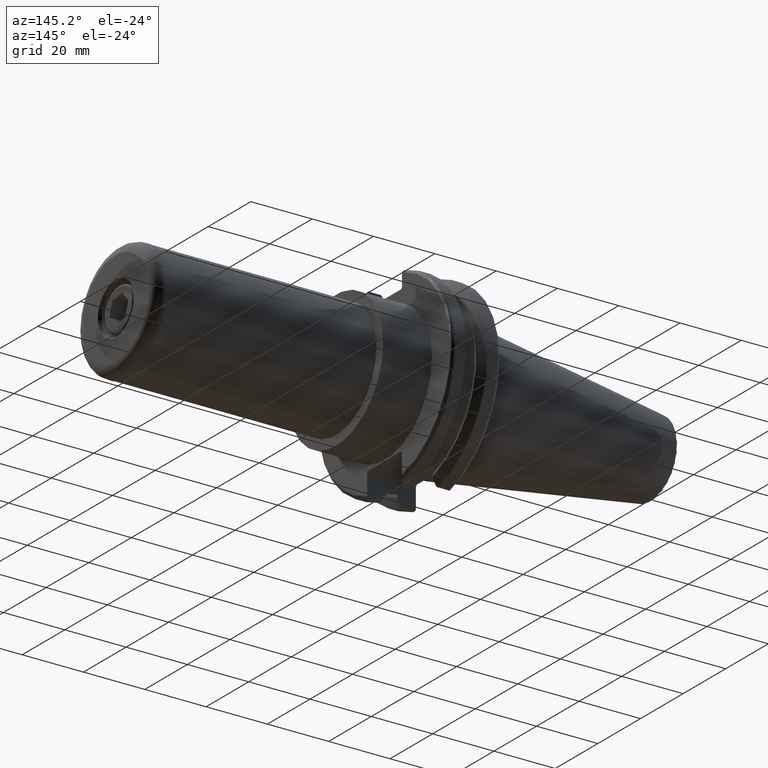
[diagram: clean part render]
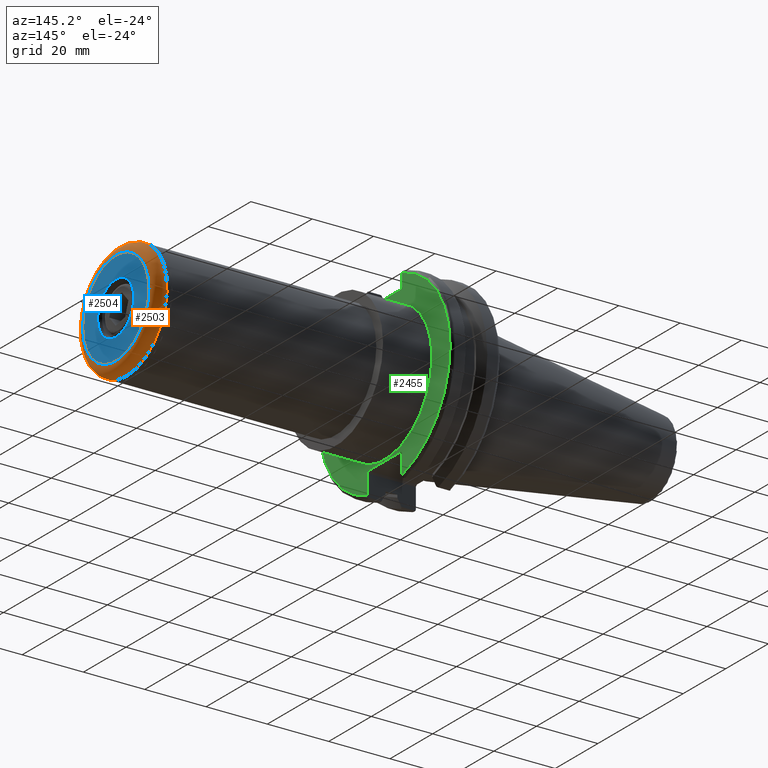
[diagram: same view with three faces highlighted in distinct colors, each labeled with its STEP entity id]
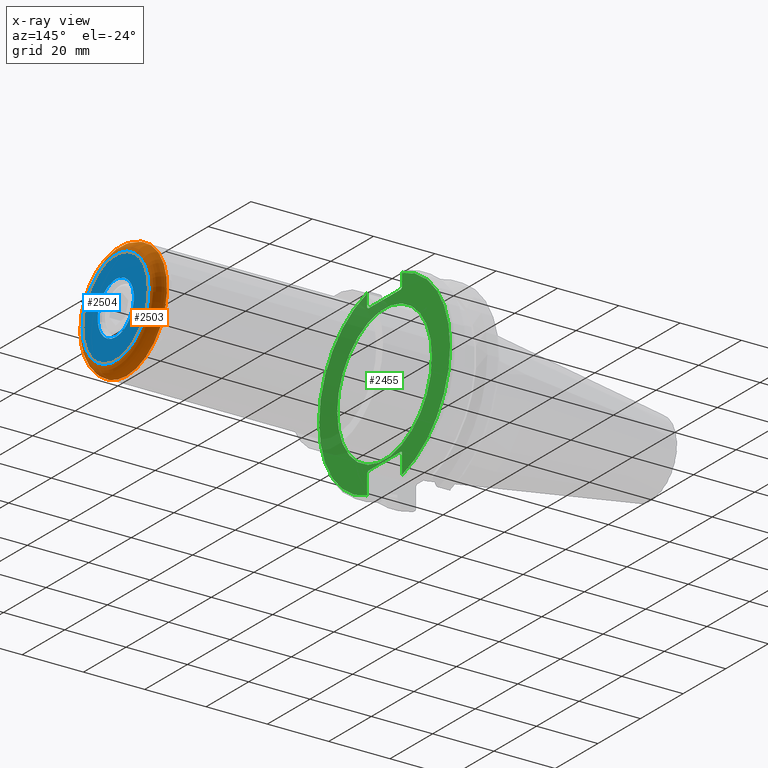
[diagram: x-ray of the same camera — body ghosted, the three highlighted faces saturated]
A machine part, auxiliary view with three faces highlighted in distinct colors.
The next image is the same camera in x-ray (body ghosted, the three faces saturated) — at least one of them is partly hidden behind the body in this view.
Their STEP definitions:

[orange] entity #2503 — the highlighted toroidal blend (fillet) surface has major radius 15.55 mm and minor (blend) radius 3.5 mm.
#515=TOROIDAL_SURFACE('',#2885,15.55,3.5);
#644=CIRCLE('',#2886,15.55);
#645=CIRCLE('',#2887,3.5);
#646=CIRCLE('',#2888,19.05);
#647=CIRCLE('',#2889,19.05);
#784=FACE_OUTER_BOUND('',#915,.T.);
#915=EDGE_LOOP('',(#2116,#2117,#2118,#2119,#2120));
#1393=VERTEX_POINT('',#4499);
#1394=VERTEX_POINT('',#4501);
#1395=VERTEX_POINT('',#4503);
#1651=EDGE_CURVE('',#1393,#1393,#644,.T.);
#1652=EDGE_CURVE('',#1393,#1394,#645,.T.);
#1653=EDGE_CURVE('',#1394,#1395,#646,.T.);
#1654=EDGE_CURVE('',#1395,#1394,#647,.T.);
#2116=ORIENTED_EDGE('',*,*,#1651,.T.);
#2117=ORIENTED_EDGE('',*,*,#1652,.T.);
#2118=ORIENTED_EDGE('',*,*,#1653,.T.);
#2119=ORIENTED_EDGE('',*,*,#1654,.T.);
#2120=ORIENTED_EDGE('',*,*,#1652,.F.);
#2503=ADVANCED_FACE('',(#784),#515,.T.);
#2885=AXIS2_PLACEMENT_3D('',#4498,#3387,#3388);
#2886=AXIS2_PLACEMENT_3D('',#4500,#3389,#3390);
#2887=AXIS2_PLACEMENT_3D('',#4502,#3391,#3392);
#2888=AXIS2_PLACEMENT_3D('',#4504,#3393,#3394);
#2889=AXIS2_PLACEMENT_3D('',#4505,#3395,#3396);
#3387=DIRECTION('center_axis',(1.,0.,0.));
#3388=DIRECTION('ref_axis',(0.,0.,-1.));
#3389=DIRECTION('center_axis',(-1.,0.,0.));
#3390=DIRECTION('ref_axis',(0.,-1.,1.83697019872103E-16));
#3391=DIRECTION('center_axis',(0.,-1.,-1.22464679914735E-16));
#3392=DIRECTION('ref_axis',(0.,-1.22464679914735E-16,1.));
#3393=DIRECTION('center_axis',(1.,0.,0.));
#3394=DIRECTION('ref_axis',(0.,-1.,1.83697019872103E-16));
#3395=DIRECTION('center_axis',(1.,0.,0.));
#3396=DIRECTION('ref_axis',(0.,-1.,1.83697019872103E-16));
#4498=CARTESIAN_POINT('Origin',(1.65,0.,0.));
#4499=CARTESIAN_POINT('',(5.15,-1.90432577267413E-15,15.55));
#4500=CARTESIAN_POINT('Origin',(5.15,0.,0.));
#4501=CARTESIAN_POINT('',(1.65,-2.33295215237571E-15,19.05));
#4502=CARTESIAN_POINT('Origin',(1.65,-1.90432577267413E-15,15.55));
#4503=CARTESIAN_POINT('',(1.65,-19.05,-2.33295215237571E-15));
#4504=CARTESIAN_POINT('Origin',(1.65,0.,0.));
#4505=CARTESIAN_POINT('Origin',(1.65,0.,0.));

[blue] entity #2504 — the highlighted planar face has unit normal (1, 0, 0).
#574=FACE_BOUND('',#917,.T.);
#644=CIRCLE('',#2886,15.55);
#648=CIRCLE('',#2891,8.47735026918962);
#785=FACE_OUTER_BOUND('',#916,.T.);
#916=EDGE_LOOP('',(#2121));
#917=EDGE_LOOP('',(#2122));
#1393=VERTEX_POINT('',#4499);
#1396=VERTEX_POINT('',#4507);
#1651=EDGE_CURVE('',#1393,#1393,#644,.T.);
#1655=EDGE_CURVE('',#1396,#1396,#648,.T.);
#2121=ORIENTED_EDGE('',*,*,#1651,.F.);
#2122=ORIENTED_EDGE('',*,*,#1655,.F.);
#2404=PLANE('',#2890);
#2504=ADVANCED_FACE('',(#785,#574),#2404,.T.);
#2886=AXIS2_PLACEMENT_3D('',#4500,#3389,#3390);
#2890=AXIS2_PLACEMENT_3D('',#4506,#3397,#3398);
#2891=AXIS2_PLACEMENT_3D('',#4508,#3399,#3400);
#3389=DIRECTION('center_axis',(-1.,0.,0.));
#3390=DIRECTION('ref_axis',(0.,-1.,1.83697019872103E-16));
#3397=DIRECTION('center_axis',(1.,0.,0.));
#3398=DIRECTION('ref_axis',(0.,0.,-1.));
#3399=DIRECTION('center_axis',(1.,0.,0.));
#3400=DIRECTION('ref_axis',(0.,-1.,0.));
#4499=CARTESIAN_POINT('',(5.15,-1.90432577267413E-15,15.55));
#4500=CARTESIAN_POINT('Origin',(5.15,0.,0.));
#4506=CARTESIAN_POINT('Origin',(5.15,7.9,0.));
#4507=CARTESIAN_POINT('',(5.15,8.47735026918962,1.0381759872414E-15));
#4508=CARTESIAN_POINT('Origin',(5.15,0.,0.));

[green] entity #2455 — the highlighted planar face has unit normal (1, 0, 0).
#570=FACE_BOUND('',#864,.T.);
#595=CIRCLE('',#2771,22.225);
#605=CIRCLE('',#2789,30.75);
#607=CIRCLE('',#2794,30.75);
#736=FACE_OUTER_BOUND('',#863,.T.);
#863=EDGE_LOOP('',(#1880,#1881,#1882,#1883,#1884,#1885,#1886,#1887,#1888,
#1889,#1890,#1891));
#864=EDGE_LOOP('',(#1892));
#1007=LINE('',#3906,#1156);
#1013=LINE('',#3932,#1162);
#1014=LINE('',#3934,#1163);
#1015=LINE('',#3936,#1164);
#1016=LINE('',#3938,#1165);
#1017=LINE('',#3940,#1166);
#1018=LINE('',#3944,#1167);
#1019=LINE('',#3946,#1168);
#1020=LINE('',#3948,#1169);
#1021=LINE('',#3949,#1170);
#1156=VECTOR('',#3152,10.);
#1162=VECTOR('',#3160,10.);
#1163=VECTOR('',#3161,10.);
#1164=VECTOR('',#3162,10.);
#1165=VECTOR('',#3163,10.);
#1166=VECTOR('',#3164,10.);
#1167=VECTOR('',#3167,10.);
#1168=VECTOR('',#3168,10.);
#1169=VECTOR('',#3169,10.);
#1170=VECTOR('',#3170,10.);
#1294=VERTEX_POINT('',#3809);
#1314=VERTEX_POINT('',#3861);
#1315=VERTEX_POINT('',#3868);
#1321=VERTEX_POINT('',#3905);
#1328=VERTEX_POINT('',#3931);
#1329=VERTEX_POINT('',#3933);
#1330=VERTEX_POINT('',#3935);
#1331=VERTEX_POINT('',#3937);
#1332=VERTEX_POINT('',#3939);
#1333=VERTEX_POINT('',#3941);
#1334=VERTEX_POINT('',#3943);
#1335=VERTEX_POINT('',#3945);
#1336=VERTEX_POINT('',#3947);
#1501=EDGE_CURVE('',#1294,#1294,#595,.T.);
#1525=EDGE_CURVE('',#1314,#1315,#605,.T.);
#1533=EDGE_CURVE('',#1321,#1315,#1007,.T.);
#1542=EDGE_CURVE('',#1314,#1328,#1013,.T.);
#1543=EDGE_CURVE('',#1329,#1328,#1014,.T.);
#1544=EDGE_CURVE('',#1329,#1330,#1015,.T.);
#1545=EDGE_CURVE('',#1331,#1330,#1016,.T.);
#1546=EDGE_CURVE('',#1331,#1332,#1017,.T.);
#1547=EDGE_CURVE('',#1333,#1332,#607,.T.);
#1548=EDGE_CURVE('',#1333,#1334,#1018,.T.);
#1549=EDGE_CURVE('',#1335,#1334,#1019,.T.);
#1550=EDGE_CURVE('',#1335,#1336,#1020,.T.);
#1551=EDGE_CURVE('',#1321,#1336,#1021,.T.);
#1880=ORIENTED_EDGE('',*,*,#1525,.F.);
#1881=ORIENTED_EDGE('',*,*,#1542,.T.);
#1882=ORIENTED_EDGE('',*,*,#1543,.F.);
#1883=ORIENTED_EDGE('',*,*,#1544,.T.);
#1884=ORIENTED_EDGE('',*,*,#1545,.F.);
#1885=ORIENTED_EDGE('',*,*,#1546,.T.);
#1886=ORIENTED_EDGE('',*,*,#1547,.F.);
#1887=ORIENTED_EDGE('',*,*,#1548,.T.);
#1888=ORIENTED_EDGE('',*,*,#1549,.F.);
#1889=ORIENTED_EDGE('',*,*,#1550,.T.);
#1890=ORIENTED_EDGE('',*,*,#1551,.F.);
#1891=ORIENTED_EDGE('',*,*,#1533,.T.);
#1892=ORIENTED_EDGE('',*,*,#1501,.T.);
#2381=PLANE('',#2793);
#2455=ADVANCED_FACE('',(#736,#570),#2381,.T.);
#2771=AXIS2_PLACEMENT_3D('',#3811,#3093,#3094);
#2789=AXIS2_PLACEMENT_3D('',#3869,#3142,#3143);
#2793=AXIS2_PLACEMENT_3D('',#3930,#3158,#3159);
#2794=AXIS2_PLACEMENT_3D('',#3942,#3165,#3166);
#3093=DIRECTION('center_axis',(-1.,0.,0.));
#3094=DIRECTION('ref_axis',(0.,1.,0.));
#3142=DIRECTION('center_axis',(-1.,0.,0.));
#3143=DIRECTION('ref_axis',(0.,1.,-6.12323399573677E-17));
#3152=DIRECTION('',(0.,0.,-1.));
#3158=DIRECTION('center_axis',(1.,0.,0.));
#3159=DIRECTION('ref_axis',(0.,0.,-1.));
#3160=DIRECTION('',(0.,0.,-1.));
#3161=DIRECTION('',(0.,0.707106781186549,0.707106781186546));
#3162=DIRECTION('',(0.,-1.,0.));
#3163=DIRECTION('',(0.,0.70710678118655,-0.707106781186545));
#3164=DIRECTION('',(0.,0.,1.));
#3165=DIRECTION('center_axis',(-1.,0.,0.));
#3166=DIRECTION('ref_axis',(0.,-1.,1.60812264967664E-16));
#3167=DIRECTION('',(0.,0.,1.));
#3168=DIRECTION('',(0.,-0.707106781186549,-0.707106781186546));
#3169=DIRECTION('',(0.,1.,0.));
#3170=DIRECTION('',(0.,-0.707106781186549,0.707106781186546));
#3809=CARTESIAN_POINT('',(19.05,-22.225,-2.72177751110499E-15));
#3811=CARTESIAN_POINT('Origin',(19.05,0.,0.));
#3861=CARTESIAN_POINT('',(19.05,8.19,29.6392712461019));
#3868=CARTESIAN_POINT('',(19.05,8.19,-29.6392712461019));
#3869=CARTESIAN_POINT('Origin',(19.05,0.,0.));
#3905=CARTESIAN_POINT('',(19.05,8.19,-23.1));
#3906=CARTESIAN_POINT('',(19.05,8.19,-11.3));
#3930=CARTESIAN_POINT('Origin',(19.05,0.,0.));
#3931=CARTESIAN_POINT('',(19.05,8.19,25.5));
#3932=CARTESIAN_POINT('',(19.05,8.19,12.5));
#3933=CARTESIAN_POINT('',(19.05,7.69,25.));
#3934=CARTESIAN_POINT('',(19.05,-0.35750000000001,16.9525));
#3935=CARTESIAN_POINT('',(19.05,-7.69,25.));
#3936=CARTESIAN_POINT('',(19.05,0.,25.));
#3937=CARTESIAN_POINT('',(19.05,-8.19,25.5));
#3938=CARTESIAN_POINT('',(19.05,0.357500000000014,16.9525));
#3939=CARTESIAN_POINT('',(19.05,-8.19,29.6392712461019));
#3940=CARTESIAN_POINT('',(19.05,-8.19,12.5));
#3941=CARTESIAN_POINT('',(19.05,-8.19,-29.6392712461019));
#3942=CARTESIAN_POINT('Origin',(19.05,0.,0.));
#3943=CARTESIAN_POINT('',(19.05,-8.19,-23.1));
#3944=CARTESIAN_POINT('',(19.05,-8.19,-11.3));
#3945=CARTESIAN_POINT('',(19.05,-7.69,-22.6));
#3946=CARTESIAN_POINT('',(19.05,-0.242499999999991,-15.1525));
#3947=CARTESIAN_POINT('',(19.05,7.69,-22.6));
#3948=CARTESIAN_POINT('',(19.05,-2.77555756156289E-16,-22.6));
#3949=CARTESIAN_POINT('',(19.05,0.242499999999989,-15.1525));